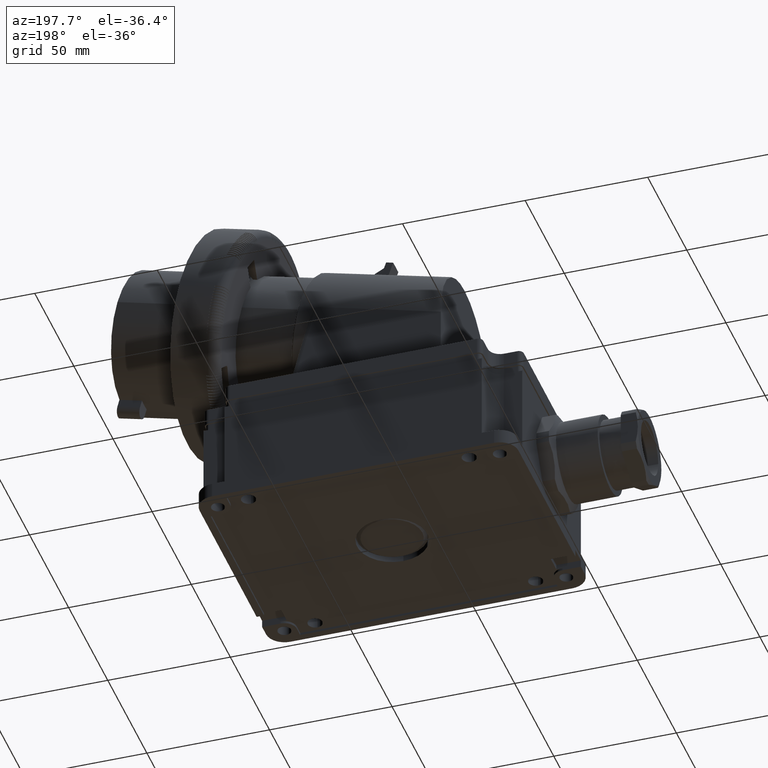
[diagram: clean part render]
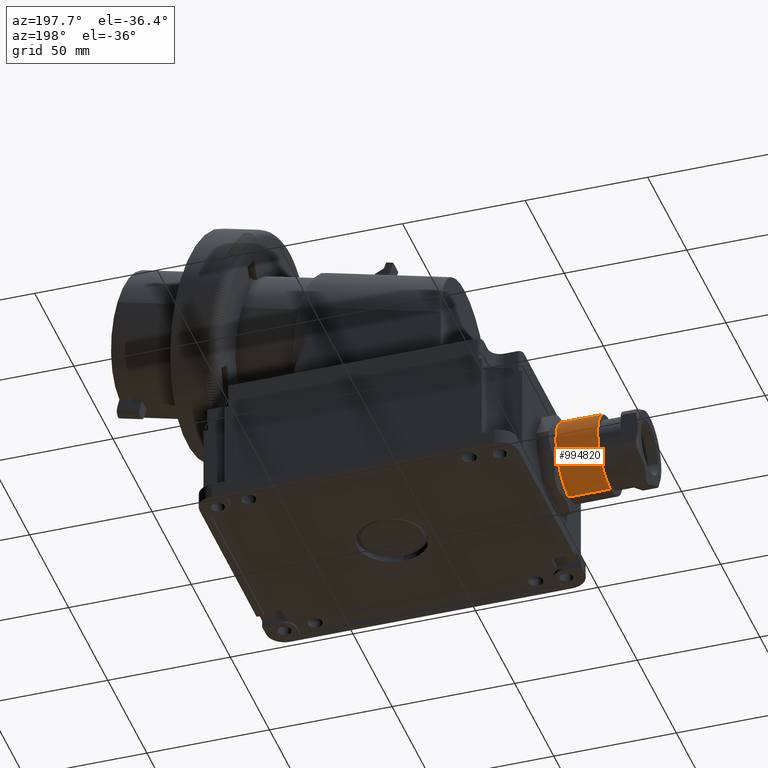
[diagram: same view with one face highlighted and labeled with its STEP entity id]
A machine part, auxiliary view. The second image highlights one B-rep face of the part: STEP entity #994820.
In plain terms, the highlighted cylindrical surface (partial cylindrical patch) has radius 16.25 mm, axis along (-1, 0, 0).
Its self-contained STEP definition (entity closure, byte-faithful):
#971120=CARTESIAN_POINT('',(-3.00000000000006,47.,22.));
#971130=DIRECTION('',(1.,-1.26217744835362E-29,0.));
#971140=DIRECTION('',(1.26217744835362E-29,1.,3.78653234506086E-29));
#971150=AXIS2_PLACEMENT_3D('',#971120,#971130,#971140);
#971160=CIRCLE('',#971150,16.2500000000001);
#971190=CARTESIAN_POINT('',(-3.00000000000006,47.,5.7499999999999));
#971200=VERTEX_POINT('',#971190);
#974100=CARTESIAN_POINT('',(-3.00000000000006,63.2500000000001,22.));
#974110=VERTEX_POINT('',#974100);
#974140=EDGE_CURVE('',#971200,#974110,#971160,.T.);
#974240=CARTESIAN_POINT('',(-3.00000000000006,47.,38.2500000000001));
#974250=DIRECTION('',(-1.,1.26217744835362E-29,0.));
#974260=VECTOR('',#974250,1.);
#974270=LINE('',#974240,#974260);
#974280=CARTESIAN_POINT('',(-3.00000000000006,47.,38.2500000000001));
#974290=VERTEX_POINT('',#974280);
#974300=CARTESIAN_POINT('',(-20.0000000000001,47.,38.2500000000001));
#974310=VERTEX_POINT('',#974300);
#974320=EDGE_CURVE('',#974290,#974310,#974270,.T.);
#974370=CARTESIAN_POINT('',(-3.00000000000006,47.,5.7499999999999));
#974380=DIRECTION('',(-1.,1.26217744835362E-29,0.));
#974390=VECTOR('',#974380,1.);
#974400=LINE('',#974370,#974390);
#974410=CARTESIAN_POINT('',(-20.0000000000001,47.,5.7499999999999));
#974420=VERTEX_POINT('',#974410);
#974430=EDGE_CURVE('',#971200,#974420,#974400,.T.);
#974450=CARTESIAN_POINT('',(-20.0000000000001,47.,22.));
#974460=DIRECTION('',(-1.,1.26217744835362E-29,0.));
#974470=DIRECTION('',(0.,-1.57772181044202E-29,1.));
#974480=AXIS2_PLACEMENT_3D('',#974450,#974460,#974470);
#974490=CIRCLE('',#974480,16.2500000000001);
#974600=EDGE_CURVE('',#974310,#974420,#974490,.T.);
#994450=EDGE_CURVE('',#974110,#974290,#971160,.T.);
#994700=CARTESIAN_POINT('',(-3.00000000000006,47.,22.));
#994710=DIRECTION('',(-1.,1.26217744835362E-29,0.));
#994720=DIRECTION('',(0.,-1.57772181044202E-29,1.));
#994730=AXIS2_PLACEMENT_3D('',#994700,#994710,#994720);
#994740=CYLINDRICAL_SURFACE('',#994730,16.2500000000001);
#994750=ORIENTED_EDGE('',*,*,#994450,.F.);
#994760=ORIENTED_EDGE('',*,*,#974320,.F.);
#994770=ORIENTED_EDGE('',*,*,#974600,.F.);
#994780=ORIENTED_EDGE('',*,*,#974430,.T.);
#994790=ORIENTED_EDGE('',*,*,#974140,.F.);
#994800=EDGE_LOOP('',(#994790,#994780,#994770,#994760,#994750));
#994810=FACE_OUTER_BOUND('',#994800,.T.);
#994820=ADVANCED_FACE('',(#994810),#994740,.T.);